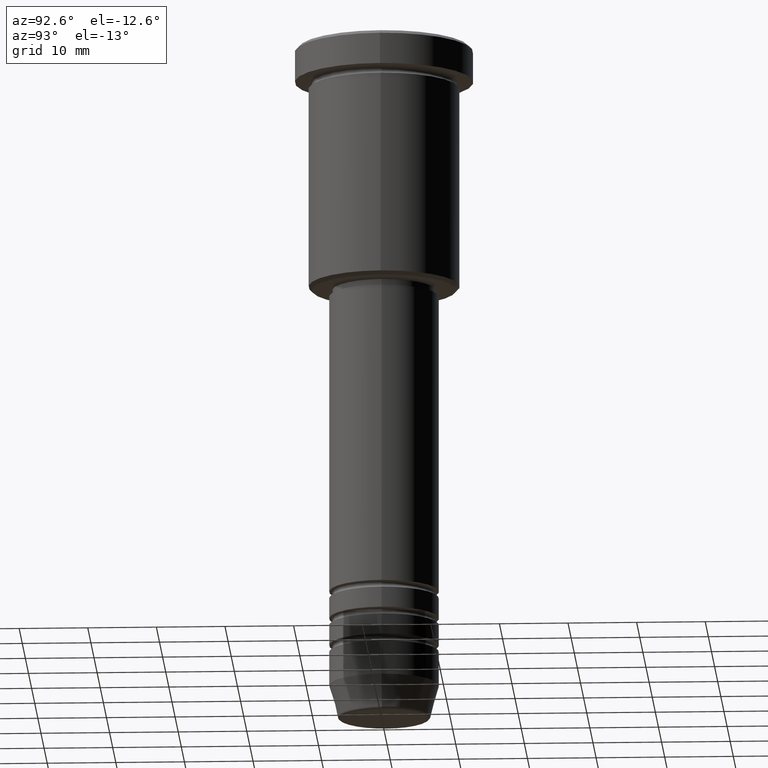
[diagram: clean part render]
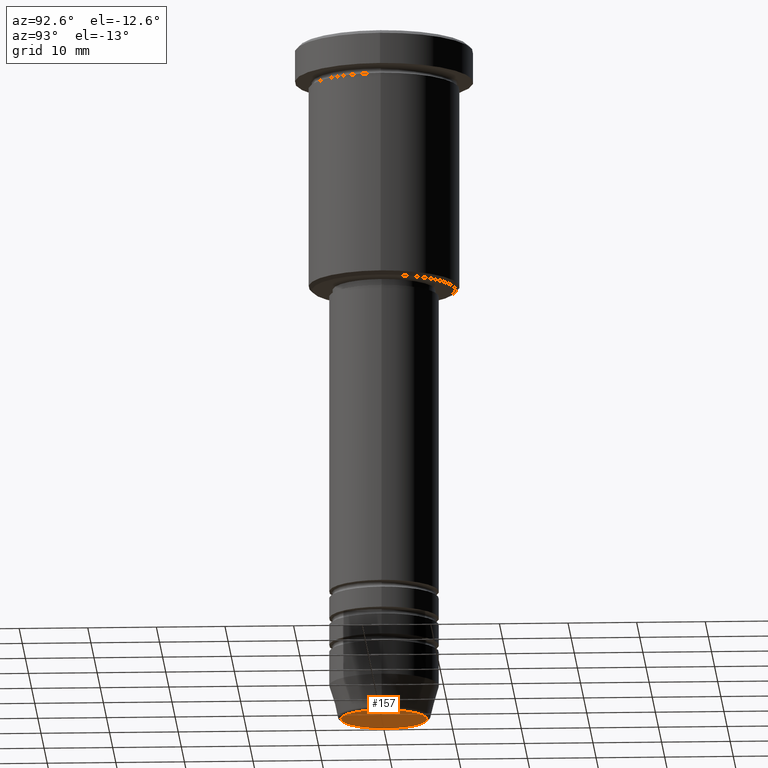
[diagram: same view with one face highlighted and labeled with its STEP entity id]
A machine part, auxiliary view. The second image highlights one B-rep face of the part: STEP entity #157.
In plain terms, the highlighted planar face has unit normal (0, -0, 1).
Its self-contained STEP definition (entity closure, byte-faithful):
#150 = DIRECTION ( 'NONE',  ( 1.000000000000000000, 0.000000000000000000, 0.000000000000000000 ) ) ;
#157 = ADVANCED_FACE ( 'NONE', ( #1181 ), #783, .F. ) ;
#190 = VERTEX_POINT ( 'NONE', #422 ) ;
#253 = CIRCLE ( 'NONE', #555, 6.276590543854900339 ) ;
#257 = CARTESIAN_POINT ( 'NONE',  ( 0.000000000000000000, 0.000000000000000000, -100.0000000000000000 ) ) ;
#279 = CARTESIAN_POINT ( 'NONE',  ( 0.000000000000000000, 0.000000000000000000, -100.0000000000000000 ) ) ;
#328 = CARTESIAN_POINT ( 'NONE',  ( 0.000000000000000000, 0.000000000000000000, -100.0000000000000000 ) ) ;
#409 = VERTEX_POINT ( 'NONE', #632 ) ;
#422 = CARTESIAN_POINT ( 'NONE',  ( -6.276590543854900339, 7.982336011935116411E-16, -100.0000000000000000 ) ) ;
#460 = ORIENTED_EDGE ( 'NONE', *, *, #934, .T. ) ;
#555 = AXIS2_PLACEMENT_3D ( 'NONE', #328, #855, #1030 ) ;
#577 = EDGE_LOOP ( 'NONE', ( #460, #798 ) ) ;
#632 = CARTESIAN_POINT ( 'NONE',  ( 6.276590543854900339, 0.000000000000000000, -100.0000000000000000 ) ) ;
#676 = AXIS2_PLACEMENT_3D ( 'NONE', #257, #977, #150 ) ;
#722 = CIRCLE ( 'NONE', #676, 6.276590543854900339 ) ;
#783 = PLANE ( 'NONE',  #908 ) ;
#798 = ORIENTED_EDGE ( 'NONE', *, *, #1076, .T. ) ;
#855 = DIRECTION ( 'NONE',  ( 0.000000000000000000, 0.000000000000000000, -1.000000000000000000 ) ) ;
#908 = AXIS2_PLACEMENT_3D ( 'NONE', #279, #917, #988 ) ;
#917 = DIRECTION ( 'NONE',  ( 0.000000000000000000, -0.000000000000000000, 1.000000000000000000 ) ) ;
#934 = EDGE_CURVE ( 'NONE', #409, #190, #253, .T. ) ;
#977 = DIRECTION ( 'NONE',  ( 0.000000000000000000, 0.000000000000000000, -1.000000000000000000 ) ) ;
#988 = DIRECTION ( 'NONE',  ( 1.000000000000000000, 0.000000000000000000, 0.000000000000000000 ) ) ;
#1030 = DIRECTION ( 'NONE',  ( 1.000000000000000000, 0.000000000000000000, 0.000000000000000000 ) ) ;
#1076 = EDGE_CURVE ( 'NONE', #190, #409, #722, .T. ) ;
#1181 = FACE_OUTER_BOUND ( 'NONE', #577, .T. ) ;